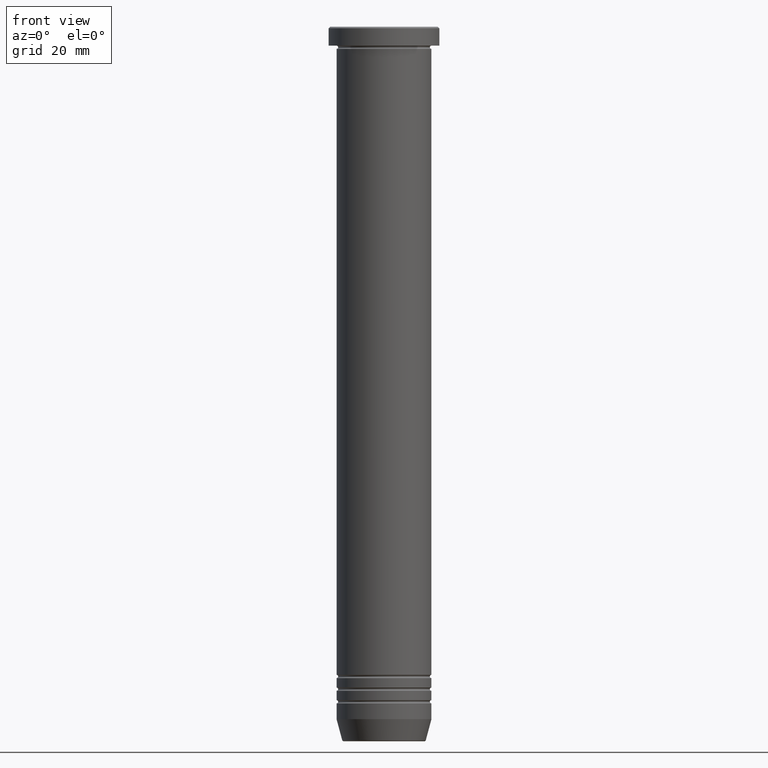
[diagram: clean part render]
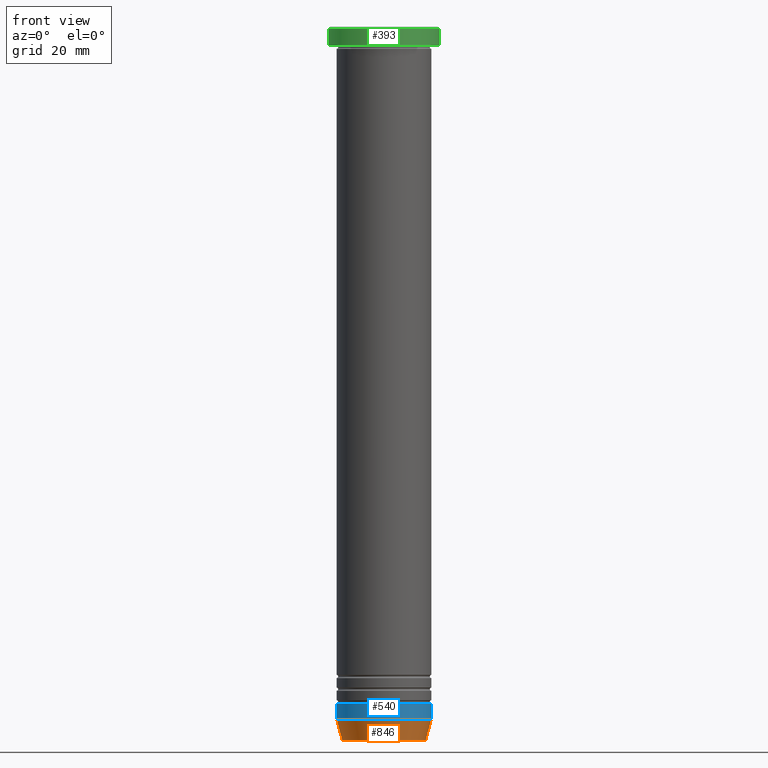
[diagram: same view with three faces highlighted in distinct colors, each labeled with its STEP entity id]
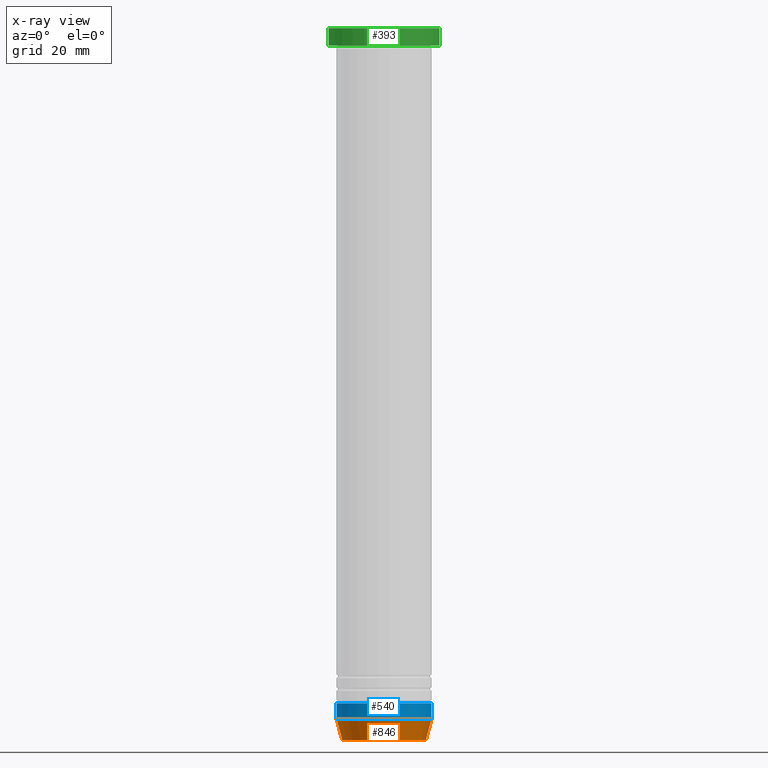
[diagram: x-ray of the same camera — body ghosted, the three highlighted faces saturated]
A machine part, front view with three faces highlighted in distinct colors.
The next image is the same camera in x-ray (body ghosted, the three faces saturated) — at least one of them is partly hidden behind the body in this view.
Their STEP definitions:

[orange] entity #846 — the highlighted conical surface has half-angle 15 deg.
#37 = CIRCLE ( 'NONE', #687, 13.22365507213720015 ) ;
#76 = EDGE_CURVE ( 'NONE', #348, #351, #1034, .T. ) ;
#121 = EDGE_CURVE ( 'NONE', #351, #482, #1028, .T. ) ;
#154 = CARTESIAN_POINT ( 'NONE',  ( 0.000000000000000000, 0.000000000000000000, -218.9999999999999716 ) ) ;
#197 = ORIENTED_EDGE ( 'NONE', *, *, #76, .F. ) ;
#221 = VECTOR ( 'NONE', #363, 999.9999999999998863 ) ;
#270 = DIRECTION ( 'NONE',  ( -0.000000000000000000, -0.000000000000000000, 1.000000000000000000 ) ) ;
#275 = CARTESIAN_POINT ( 'NONE',  ( 0.000000000000000000, 0.000000000000000000, -225.6294095225512422 ) ) ;
#348 = VERTEX_POINT ( 'NONE', #1069 ) ;
#351 = VERTEX_POINT ( 'NONE', #818 ) ;
#363 = DIRECTION ( 'NONE',  ( 0.2588190451025202399, 0.000000000000000000, 0.9659258262890684232 ) ) ;
#418 = CARTESIAN_POINT ( 'NONE',  ( 0.000000000000000000, 0.000000000000000000, -225.9999999999999716 ) ) ;
#420 = ORIENTED_EDGE ( 'NONE', *, *, #952, .T. ) ;
#470 = CARTESIAN_POINT ( 'NONE',  ( 14.99999999999999822, 0.000000000000000000, -218.9999999999999716 ) ) ;
#482 = VERTEX_POINT ( 'NONE', #470 ) ;
#538 = CARTESIAN_POINT ( 'NONE',  ( 13.22365507213720015, 0.000000000000000000, -225.6294095225512422 ) ) ;
#604 = DIRECTION ( 'NONE',  ( -0.000000000000000000, -0.000000000000000000, 1.000000000000000000 ) ) ;
#618 = VECTOR ( 'NONE', #851, 999.9999999999998863 ) ;
#637 = DIRECTION ( 'NONE',  ( -1.000000000000000000, 0.000000000000000000, 0.000000000000000000 ) ) ;
#681 = VERTEX_POINT ( 'NONE', #538 ) ;
#687 = AXIS2_PLACEMENT_3D ( 'NONE', #275, #270, #637 ) ;
#801 = ORIENTED_EDGE ( 'NONE', *, *, #121, .F. ) ;
#818 = CARTESIAN_POINT ( 'NONE',  ( -14.99999999999999822, 1.836970198721029589E-15, -218.9999999999999716 ) ) ;
#840 = CARTESIAN_POINT ( 'NONE',  ( -13.12435565298214080, 1.607270014129604977E-15, -225.9999999999999716 ) ) ;
#846 = ADVANCED_FACE ( 'NONE', ( #1021 ), #936, .T. ) ;
#851 = DIRECTION ( 'NONE',  ( -0.2588190451025202399, 3.169619151431758162E-17, 0.9659258262890684232 ) ) ;
#855 = DIRECTION ( 'NONE',  ( -0.000000000000000000, -0.000000000000000000, 1.000000000000000000 ) ) ;
#878 = EDGE_CURVE ( 'NONE', #681, #482, #1147, .T. ) ;
#936 = CONICAL_SURFACE ( 'NONE', #1135, 13.12435565298214080, 0.2617993877991488527 ) ;
#948 = DIRECTION ( 'NONE',  ( 1.000000000000000000, 0.000000000000000000, 0.000000000000000000 ) ) ;
#952 = EDGE_CURVE ( 'NONE', #348, #681, #37, .T. ) ;
#980 = ORIENTED_EDGE ( 'NONE', *, *, #878, .T. ) ;
#997 = EDGE_LOOP ( 'NONE', ( #197, #420, #980, #801 ) ) ;
#1021 = FACE_OUTER_BOUND ( 'NONE', #997, .T. ) ;
#1028 = CIRCLE ( 'NONE', #1149, 14.99999999999999822 ) ;
#1034 = LINE ( 'NONE', #840, #618 ) ;
#1069 = CARTESIAN_POINT ( 'NONE',  ( -13.22365507213720015, 1.728200442216588780E-15, -225.6294095225512422 ) ) ;
#1072 = CARTESIAN_POINT ( 'NONE',  ( 13.12435565298214080, 0.000000000000000000, -225.9999999999999716 ) ) ;
#1127 = DIRECTION ( 'NONE',  ( 1.000000000000000000, 0.000000000000000000, 0.000000000000000000 ) ) ;
#1135 = AXIS2_PLACEMENT_3D ( 'NONE', #418, #855, #1127 ) ;
#1147 = LINE ( 'NONE', #1072, #221 ) ;
#1149 = AXIS2_PLACEMENT_3D ( 'NONE', #154, #604, #948 ) ;

[blue] entity #540 — the highlighted cylindrical surface (partial cylindrical patch) has radius 15 mm, axis along (-0, -0, 1).
#3 = AXIS2_PLACEMENT_3D ( 'NONE', #408, #141, #430 ) ;
#27 = EDGE_LOOP ( 'NONE', ( #1027, #744, #1004, #946 ) ) ;
#64 = CARTESIAN_POINT ( 'NONE',  ( -14.99999999999999822, 1.836970198721029589E-15, 0.000000000000000000 ) ) ;
#121 = EDGE_CURVE ( 'NONE', #351, #482, #1028, .T. ) ;
#141 = DIRECTION ( 'NONE',  ( -0.000000000000000000, -0.000000000000000000, 1.000000000000000000 ) ) ;
#154 = CARTESIAN_POINT ( 'NONE',  ( 0.000000000000000000, 0.000000000000000000, -218.9999999999999716 ) ) ;
#210 = CARTESIAN_POINT ( 'NONE',  ( -14.99999999999999822, 1.836970198721029589E-15, -213.9999999999999716 ) ) ;
#332 = VERTEX_POINT ( 'NONE', #210 ) ;
#351 = VERTEX_POINT ( 'NONE', #818 ) ;
#352 = LINE ( 'NONE', #64, #1031 ) ;
#355 = CARTESIAN_POINT ( 'NONE',  ( 14.99999999999999822, 0.000000000000000000, 0.000000000000000000 ) ) ;
#408 = CARTESIAN_POINT ( 'NONE',  ( 0.000000000000000000, 0.000000000000000000, -213.9999999999999716 ) ) ;
#421 = FACE_OUTER_BOUND ( 'NONE', #27, .T. ) ;
#428 = VECTOR ( 'NONE', #701, 1000.000000000000000 ) ;
#430 = DIRECTION ( 'NONE',  ( 1.000000000000000000, 0.000000000000000000, 0.000000000000000000 ) ) ;
#447 = EDGE_CURVE ( 'NONE', #351, #332, #352, .T. ) ;
#470 = CARTESIAN_POINT ( 'NONE',  ( 14.99999999999999822, 0.000000000000000000, -218.9999999999999716 ) ) ;
#482 = VERTEX_POINT ( 'NONE', #470 ) ;
#499 = CARTESIAN_POINT ( 'NONE',  ( 14.99999999999999822, 0.000000000000000000, -213.9999999999999716 ) ) ;
#540 = ADVANCED_FACE ( 'NONE', ( #421 ), #786, .T. ) ;
#557 = EDGE_CURVE ( 'NONE', #332, #569, #886, .T. ) ;
#569 = VERTEX_POINT ( 'NONE', #499 ) ;
#604 = DIRECTION ( 'NONE',  ( -0.000000000000000000, -0.000000000000000000, 1.000000000000000000 ) ) ;
#701 = DIRECTION ( 'NONE',  ( -0.000000000000000000, -0.000000000000000000, 1.000000000000000000 ) ) ;
#724 = AXIS2_PLACEMENT_3D ( 'NONE', #1134, #1057, #1144 ) ;
#744 = ORIENTED_EDGE ( 'NONE', *, *, #121, .T. ) ;
#786 = CYLINDRICAL_SURFACE ( 'NONE', #724, 14.99999999999999822 ) ;
#818 = CARTESIAN_POINT ( 'NONE',  ( -14.99999999999999822, 1.836970198721029589E-15, -218.9999999999999716 ) ) ;
#886 = CIRCLE ( 'NONE', #3, 14.99999999999999822 ) ;
#903 = EDGE_CURVE ( 'NONE', #482, #569, #971, .T. ) ;
#946 = ORIENTED_EDGE ( 'NONE', *, *, #557, .F. ) ;
#948 = DIRECTION ( 'NONE',  ( 1.000000000000000000, 0.000000000000000000, 0.000000000000000000 ) ) ;
#971 = LINE ( 'NONE', #355, #428 ) ;
#1004 = ORIENTED_EDGE ( 'NONE', *, *, #903, .T. ) ;
#1027 = ORIENTED_EDGE ( 'NONE', *, *, #447, .F. ) ;
#1028 = CIRCLE ( 'NONE', #1149, 14.99999999999999822 ) ;
#1031 = VECTOR ( 'NONE', #1050, 1000.000000000000000 ) ;
#1050 = DIRECTION ( 'NONE',  ( -0.000000000000000000, -0.000000000000000000, 1.000000000000000000 ) ) ;
#1057 = DIRECTION ( 'NONE',  ( -0.000000000000000000, -0.000000000000000000, 1.000000000000000000 ) ) ;
#1134 = CARTESIAN_POINT ( 'NONE',  ( 0.000000000000000000, 0.000000000000000000, 0.000000000000000000 ) ) ;
#1144 = DIRECTION ( 'NONE',  ( 1.000000000000000000, 0.000000000000000000, 0.000000000000000000 ) ) ;
#1149 = AXIS2_PLACEMENT_3D ( 'NONE', #154, #604, #948 ) ;

[green] entity #393 — the highlighted cylindrical surface (partial cylindrical patch) has radius 17.5 mm, axis along (-0, -0, 1).
#33 = FACE_OUTER_BOUND ( 'NONE', #223, .T. ) ;
#34 = LINE ( 'NONE', #576, #581 ) ;
#56 = CARTESIAN_POINT ( 'NONE',  ( 17.50000000000000000, 0.000000000000000000, 0.000000000000000000 ) ) ;
#70 = CARTESIAN_POINT ( 'NONE',  ( 17.50000000000000000, 0.000000000000000000, -0.5000000000000073275 ) ) ;
#77 = ORIENTED_EDGE ( 'NONE', *, *, #155, .T. ) ;
#88 = AXIS2_PLACEMENT_3D ( 'NONE', #588, #138, #165 ) ;
#138 = DIRECTION ( 'NONE',  ( 0.000000000000000000, 0.000000000000000000, -1.000000000000000000 ) ) ;
#155 = EDGE_CURVE ( 'NONE', #433, #790, #595, .T. ) ;
#165 = DIRECTION ( 'NONE',  ( 1.000000000000000000, 0.000000000000000000, 0.000000000000000000 ) ) ;
#223 = EDGE_LOOP ( 'NONE', ( #678, #1078, #1073, #77 ) ) ;
#230 = CARTESIAN_POINT ( 'NONE',  ( -17.50000000000000000, 2.143131898507868248E-15, -5.999999999999999112 ) ) ;
#294 = CIRCLE ( 'NONE', #710, 17.50000000000000000 ) ;
#388 = CYLINDRICAL_SURFACE ( 'NONE', #424, 17.50000000000000000 ) ;
#393 = ADVANCED_FACE ( 'NONE', ( #33 ), #388, .T. ) ;
#414 = DIRECTION ( 'NONE',  ( -0.000000000000000000, -0.000000000000000000, 1.000000000000000000 ) ) ;
#424 = AXIS2_PLACEMENT_3D ( 'NONE', #742, #934, #753 ) ;
#433 = VERTEX_POINT ( 'NONE', #70 ) ;
#463 = CARTESIAN_POINT ( 'NONE',  ( 17.50000000000000000, 0.000000000000000000, -5.999999999999999112 ) ) ;
#514 = LINE ( 'NONE', #56, #706 ) ;
#535 = CARTESIAN_POINT ( 'NONE',  ( -17.50000000000000000, 2.143131898507868248E-15, -0.5000000000000073275 ) ) ;
#576 = CARTESIAN_POINT ( 'NONE',  ( -17.50000000000000000, 2.143131898507868248E-15, 0.000000000000000000 ) ) ;
#581 = VECTOR ( 'NONE', #987, 1000.000000000000000 ) ;
#588 = CARTESIAN_POINT ( 'NONE',  ( 0.000000000000000000, 0.000000000000000000, -0.5000000000000073275 ) ) ;
#595 = CIRCLE ( 'NONE', #88, 17.50000000000000000 ) ;
#642 = EDGE_CURVE ( 'NONE', #778, #433, #514, .T. ) ;
#678 = ORIENTED_EDGE ( 'NONE', *, *, #990, .F. ) ;
#706 = VECTOR ( 'NONE', #414, 1000.000000000000000 ) ;
#710 = AXIS2_PLACEMENT_3D ( 'NONE', #847, #944, #749 ) ;
#742 = CARTESIAN_POINT ( 'NONE',  ( 0.000000000000000000, 0.000000000000000000, 0.000000000000000000 ) ) ;
#749 = DIRECTION ( 'NONE',  ( 1.000000000000000000, 0.000000000000000000, 0.000000000000000000 ) ) ;
#753 = DIRECTION ( 'NONE',  ( 1.000000000000000000, 0.000000000000000000, 0.000000000000000000 ) ) ;
#778 = VERTEX_POINT ( 'NONE', #463 ) ;
#790 = VERTEX_POINT ( 'NONE', #535 ) ;
#847 = CARTESIAN_POINT ( 'NONE',  ( 0.000000000000000000, 0.000000000000000000, -5.999999999999999112 ) ) ;
#934 = DIRECTION ( 'NONE',  ( -0.000000000000000000, -0.000000000000000000, 1.000000000000000000 ) ) ;
#944 = DIRECTION ( 'NONE',  ( -0.000000000000000000, -0.000000000000000000, 1.000000000000000000 ) ) ;
#987 = DIRECTION ( 'NONE',  ( -0.000000000000000000, -0.000000000000000000, 1.000000000000000000 ) ) ;
#990 = EDGE_CURVE ( 'NONE', #1126, #790, #34, .T. ) ;
#1073 = ORIENTED_EDGE ( 'NONE', *, *, #642, .T. ) ;
#1078 = ORIENTED_EDGE ( 'NONE', *, *, #1095, .T. ) ;
#1095 = EDGE_CURVE ( 'NONE', #1126, #778, #294, .T. ) ;
#1126 = VERTEX_POINT ( 'NONE', #230 ) ;